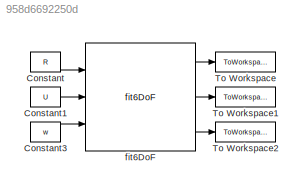
MODEL slx_958d6692250d
KIND model
CONFIG AbsTol = auto
CONFIG EnableMultiTasking = off
CONFIG FixedStep = auto
CONFIG MaxStep = auto
CONFIG MinStep = auto
CONFIG RelTol = 1e-3
CONFIG SampleTimeConstraint = Unconstrained
CONFIG Solver = VariableStepAuto
CONFIG SolverName = VariableStepAuto
CONFIG StartTime = 0.0
CONFIG StopTime = 0
BLOCK [Constant] Constant
  Value = R
BLOCK [Constant] Constant1
  Value = U
BLOCK [Constant] Constant3
  Value = w
BLOCK [ToWorkspace] To Workspace
  FixptAsFi = on
  MaxDataPoints = inf
  Ports = [1]
  SampleTime = -1
  Save2DSignal = 3-D array (concatenate along third dimension)
  SaveFormat = Structure With Time
  VariableName = posVec
BLOCK [ToWorkspace] To Workspace1
  FixptAsFi = on
  MaxDataPoints = inf
  Ports = [1]
  SampleTime = -1
  Save2DSignal = 3-D array (concatenate along third dimension)
  SaveFormat = Structure With Time
  VariableName = eulAngVec
BLOCK [ToWorkspace] To Workspace2
  FixptAsFi = on
  MaxDataPoints = inf
  Ports = [1]
  SampleTime = -1
  Save2DSignal = 3-D array (concatenate along third dimension)
  SaveFormat = Structure With Time
  VariableName = err
BLOCK [Reference] fit6DoF  REF=fit6DoF/fit6DoF
  Ports = [3, 3]
  SourceBlock = fit6DoF/fit6DoF
LINE Constant1:1 -> fit6DoF:2
LINE Constant3:1 -> fit6DoF:3
LINE Constant:1 -> fit6DoF:1
LINE fit6DoF:1 -> To Workspace:1
LINE fit6DoF:2 -> To Workspace1:1
LINE fit6DoF:3 -> To Workspace2:1
